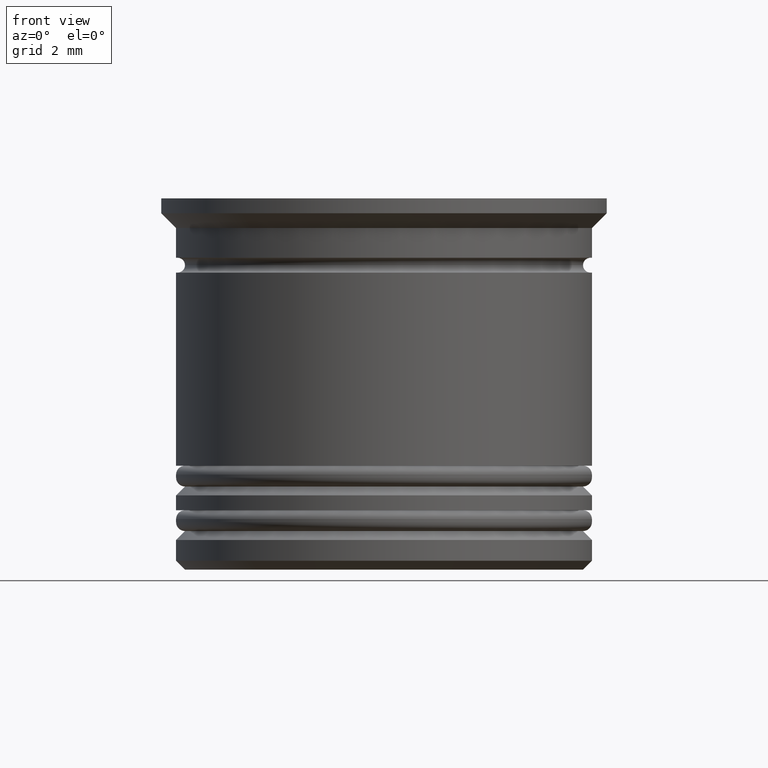
[diagram: clean part render]
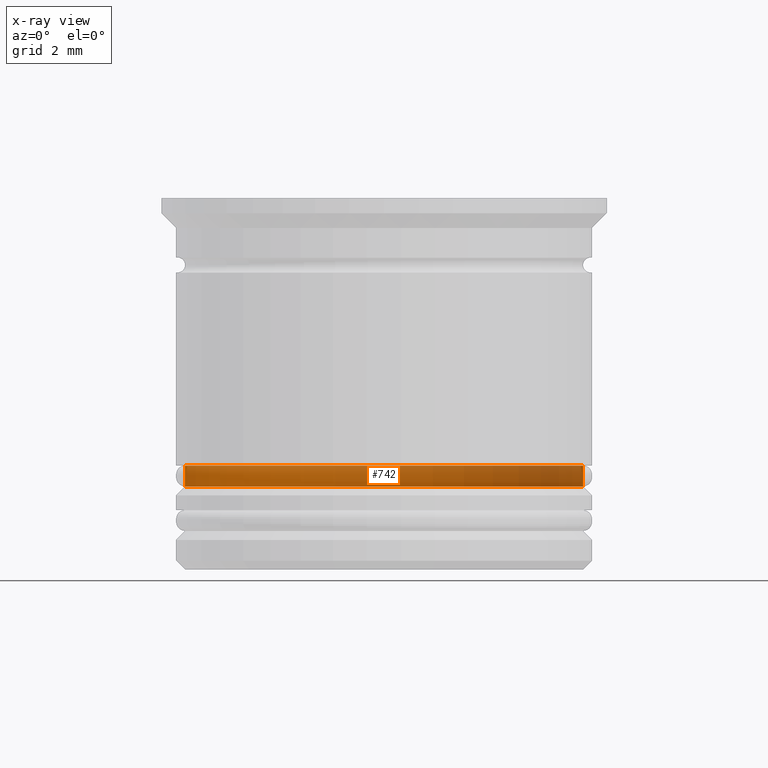
[diagram: x-ray — body ghosted, one internal face saturated and labeled with its STEP entity id]
A machine part, front view, then the same camera in x-ray: the body is ghosted and one INTERNAL B-rep face — a face not visible from any outside direction — is saturated and labeled: STEP entity #742.
In plain terms, the highlighted cylindrical surface (partial cylindrical patch) has radius 6.7 mm, axis along (-0, -0, 1).
Its self-contained STEP definition (entity closure, byte-faithful):
#13 = LINE ( 'NONE', #931, #580 ) ;
#22 = ORIENTED_EDGE ( 'NONE', *, *, #1390, .T. ) ;
#32 = VERTEX_POINT ( 'NONE', #563 ) ;
#58 = CARTESIAN_POINT ( 'NONE',  ( 6.700000000000001066, 0.000000000000000000, -9.000000000000001776 ) ) ;
#166 = AXIS2_PLACEMENT_3D ( 'NONE', #573, #1168, #1625 ) ;
#196 = DIRECTION ( 'NONE',  ( -0.000000000000000000, -0.000000000000000000, 1.000000000000000000 ) ) ;
#340 = DIRECTION ( 'NONE',  ( -0.000000000000000000, -0.000000000000000000, 1.000000000000000000 ) ) ;
#418 = DIRECTION ( 'NONE',  ( -1.000000000000000000, 0.000000000000000000, 0.000000000000000000 ) ) ;
#446 = CYLINDRICAL_SURFACE ( 'NONE', #1806, 6.700000000000001066 ) ;
#550 = CARTESIAN_POINT ( 'NONE',  ( -6.700000000000001066, 8.205133554287267548E-16, -9.000000000000001776 ) ) ;
#563 = CARTESIAN_POINT ( 'NONE',  ( 6.700000000000001066, 0.000000000000000000, -9.700000000000008171 ) ) ;
#573 = CARTESIAN_POINT ( 'NONE',  ( 0.000000000000000000, 0.000000000000000000, -9.000000000000001776 ) ) ;
#580 = VECTOR ( 'NONE', #1666, 1000.000000000000000 ) ;
#612 = EDGE_CURVE ( 'NONE', #32, #1469, #13, .T. ) ;
#631 = EDGE_CURVE ( 'NONE', #893, #1067, #1561, .T. ) ;
#680 = AXIS2_PLACEMENT_3D ( 'NONE', #1312, #1474, #418 ) ;
#742 = ADVANCED_FACE ( 'NONE', ( #1388 ), #446, .T. ) ;
#790 = ORIENTED_EDGE ( 'NONE', *, *, #631, .T. ) ;
#795 = CARTESIAN_POINT ( 'NONE',  ( -6.700000000000001066, 8.205133554287267548E-16, 0.000000000000000000 ) ) ;
#837 = CIRCLE ( 'NONE', #166, 6.700000000000001066 ) ;
#874 = ORIENTED_EDGE ( 'NONE', *, *, #612, .F. ) ;
#893 = VERTEX_POINT ( 'NONE', #1571 ) ;
#928 = EDGE_CURVE ( 'NONE', #1469, #1067, #837, .T. ) ;
#931 = CARTESIAN_POINT ( 'NONE',  ( 6.700000000000001066, 0.000000000000000000, 0.000000000000000000 ) ) ;
#1067 = VERTEX_POINT ( 'NONE', #550 ) ;
#1107 = ORIENTED_EDGE ( 'NONE', *, *, #928, .F. ) ;
#1168 = DIRECTION ( 'NONE',  ( -0.000000000000000000, -0.000000000000000000, 1.000000000000000000 ) ) ;
#1208 = EDGE_LOOP ( 'NONE', ( #22, #790, #1107, #874 ) ) ;
#1235 = CARTESIAN_POINT ( 'NONE',  ( 0.000000000000000000, 0.000000000000000000, 0.000000000000000000 ) ) ;
#1277 = VECTOR ( 'NONE', #196, 1000.000000000000000 ) ;
#1312 = CARTESIAN_POINT ( 'NONE',  ( 0.000000000000000000, 0.000000000000000000, -9.700000000000008171 ) ) ;
#1388 = FACE_OUTER_BOUND ( 'NONE', #1208, .T. ) ;
#1390 = EDGE_CURVE ( 'NONE', #32, #893, #1541, .T. ) ;
#1469 = VERTEX_POINT ( 'NONE', #58 ) ;
#1474 = DIRECTION ( 'NONE',  ( -0.000000000000000000, -0.000000000000000000, 1.000000000000000000 ) ) ;
#1541 = CIRCLE ( 'NONE', #680, 6.700000000000001066 ) ;
#1552 = DIRECTION ( 'NONE',  ( 1.000000000000000000, 0.000000000000000000, 0.000000000000000000 ) ) ;
#1561 = LINE ( 'NONE', #795, #1277 ) ;
#1571 = CARTESIAN_POINT ( 'NONE',  ( -6.700000000000001066, 8.205133554287267548E-16, -9.700000000000008171 ) ) ;
#1625 = DIRECTION ( 'NONE',  ( 1.000000000000000000, 0.000000000000000000, 0.000000000000000000 ) ) ;
#1666 = DIRECTION ( 'NONE',  ( -0.000000000000000000, -0.000000000000000000, 1.000000000000000000 ) ) ;
#1806 = AXIS2_PLACEMENT_3D ( 'NONE', #1235, #340, #1552 ) ;